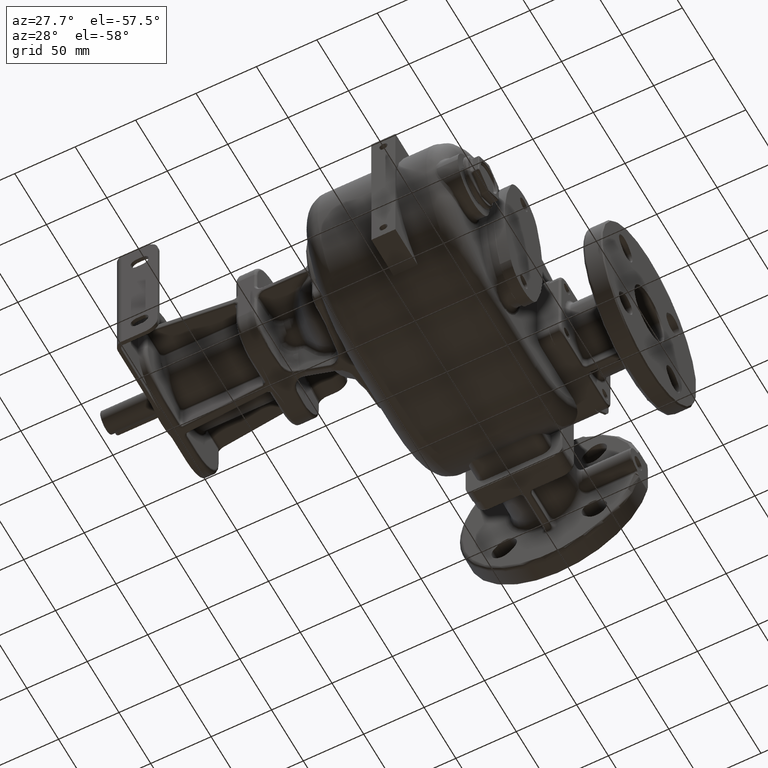
[diagram: clean part render]
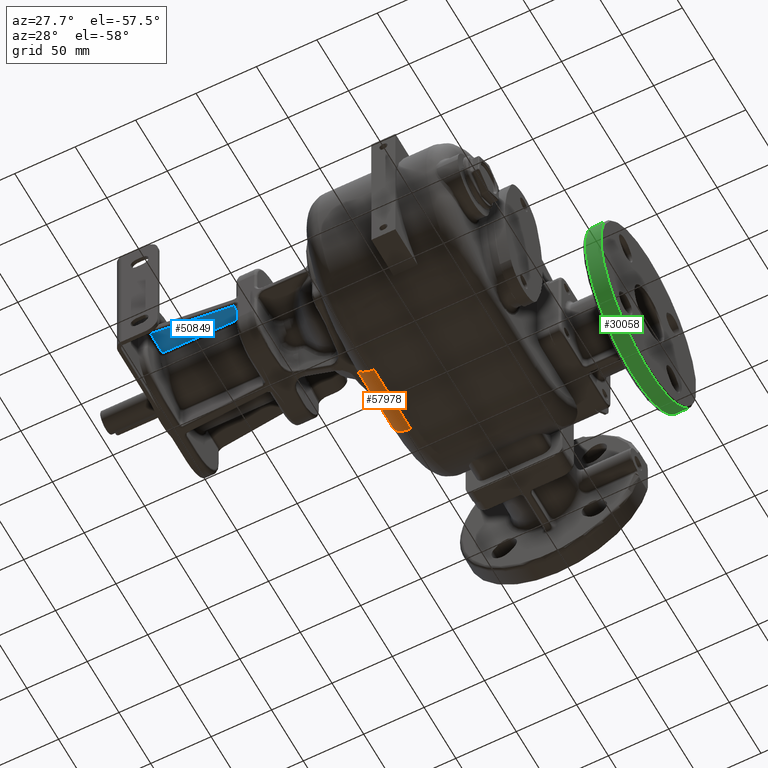
[diagram: same view with three faces highlighted in distinct colors, each labeled with its STEP entity id]
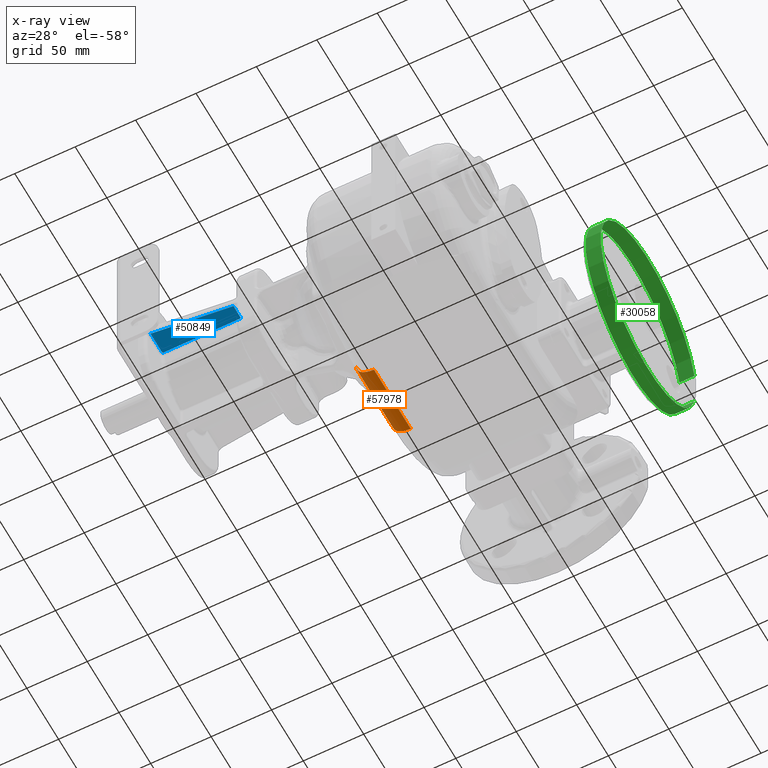
[diagram: x-ray of the same camera — body ghosted, the three highlighted faces saturated]
A machine part, auxiliary view with three faces highlighted in distinct colors.
The next image is the same camera in x-ray (body ghosted, the three faces saturated) — at least one of them is partly hidden behind the body in this view.
Their STEP definitions:

[orange] entity #57978 — the highlighted cylindrical surface (edge-blend (fillet) strip) has radius 15 mm, axis along (0, -1, 0).
#7577=CARTESIAN_POINT('',(-5.5E1,9.E1,-7.4E1));
#7578=DIRECTION('',(0.E0,-1.E0,0.E0));
#7579=DIRECTION('',(-1.E0,0.E0,0.E0));
#7580=AXIS2_PLACEMENT_3D('',#7577,#7578,#7579);
#7742=DIRECTION('',(0.E0,-1.E0,0.E0));
#7743=VECTOR('',#7742,5.800704260280E1);
#7744=CARTESIAN_POINT('',(-7.E1,1.480070426028E2,-7.4E1));
#7745=LINE('',#7744,#7743);
#21976=CARTESIAN_POINT('',(-5.5E1,1.480070426028E2,-7.4E1));
#21977=DIRECTION('',(0.E0,-1.E0,0.E0));
#21978=DIRECTION('',(-1.E0,0.E0,0.E0));
#21979=AXIS2_PLACEMENT_3D('',#21976,#21977,#21978);
#21981=DIRECTION('',(0.E0,-1.E0,0.E0));
#21982=VECTOR('',#21981,5.800704260279E1);
#21983=CARTESIAN_POINT('',(-5.5E1,1.480070426028E2,-8.9E1));
#21984=LINE('',#21983,#21982);
#23661=CARTESIAN_POINT('',(-7.E1,1.480070426028E2,-7.4E1));
#23662=VERTEX_POINT('',#23661);
#23664=CARTESIAN_POINT('',(-5.5E1,1.480070426028E2,-8.9E1));
#23666=VERTEX_POINT('',#23664);
#23667=CARTESIAN_POINT('',(-7.E1,9.E1,-7.4E1));
#23668=VERTEX_POINT('',#23667);
#23669=CARTESIAN_POINT('',(-5.5E1,9.000000000001E1,-8.9E1));
#23670=VERTEX_POINT('',#23669);
#57965=CARTESIAN_POINT('',(-5.5E1,1.484924529559E2,-7.4E1));
#57966=DIRECTION('',(0.E0,-1.E0,0.E0));
#57967=DIRECTION('',(-1.E0,0.E0,0.E0));
#57968=AXIS2_PLACEMENT_3D('',#57965,#57966,#57967);
#57969=CYLINDRICAL_SURFACE('',#57968,1.5E1);
#57970=ORIENTED_EDGE('',*,*,#35265,.T.);
#57971=ORIENTED_EDGE('',*,*,#35186,.T.);
#57973=ORIENTED_EDGE('',*,*,#57972,.F.);
#57975=ORIENTED_EDGE('',*,*,#57974,.F.);
#57976=EDGE_LOOP('',(#57970,#57971,#57973,#57975));
#57977=FACE_OUTER_BOUND('',#57976,.F.);
#57978=ADVANCED_FACE('',(#57977),#57969,.T.);
#7581=CIRCLE('',#7580,1.5E1);
#21980=CIRCLE('',#21979,1.5E1);
#35186=EDGE_CURVE('',#23668,#23670,#7581,.T.);
#35265=EDGE_CURVE('',#23662,#23668,#7745,.T.);
#57972=EDGE_CURVE('',#23666,#23670,#21984,.T.);
#57974=EDGE_CURVE('',#23662,#23666,#21980,.T.);

[blue] entity #50849 — the highlighted planar face has unit normal (0, 0, 1).
#17756=DIRECTION('',(-9.943592005519E-1,-1.060649813922E-1,
-1.477048883055E-11));
#17757=VECTOR('',#17756,6.562065321763E1);
#17758=CARTESIAN_POINT('',(-1.455704797561E2,4.150249442315E1,
-3.500000017587E0));
#17759=LINE('',#17758,#17757);
#17760=CARTESIAN_POINT('',(-1.408E2,4.3E1,-3.5E0));
#17761=DIRECTION('',(0.E0,0.E0,1.E0));
#17762=DIRECTION('',(-1.E0,0.E0,0.E0));
#17763=AXIS2_PLACEMENT_3D('',#17760,#17761,#17762);
#17765=DIRECTION('',(0.E0,-1.E0,0.E0));
#17766=VECTOR('',#17765,9.400132978959E0);
#17767=CARTESIAN_POINT('',(-1.458E2,5.240013297896E1,-3.5E0));
#17768=LINE('',#17767,#17766);
#17769=CARTESIAN_POINT('',(-1.468E2,5.341106724705E1,-3.5E0));
#17770=CARTESIAN_POINT('',(-1.467773977247E2,5.341106714674E1,-3.5E0));
#17771=CARTESIAN_POINT('',(-1.467322893593E2,5.340952240568E1,-3.5E0));
#17772=CARTESIAN_POINT('',(-1.466647303912E2,5.340255682113E1,-3.5E0));
#17773=CARTESIAN_POINT('',(-1.465978299307E2,5.339097818542E1,-3.5E0));
#17774=CARTESIAN_POINT('',(-1.465318107711E2,5.337482923168E1,-3.5E0));
#17775=CARTESIAN_POINT('',(-1.464670015705E2,5.335417941937E1,-3.5E0));
#17776=CARTESIAN_POINT('',(-1.464036858645E2,5.332911282337E1,-3.5E0));
#17777=CARTESIAN_POINT('',(-1.463421564810E2,5.329973462821E1,-3.5E0));
#17778=CARTESIAN_POINT('',(-1.462826963966E2,5.326616859214E1,-3.5E0));
#17779=CARTESIAN_POINT('',(-1.462255829437E2,5.322855793060E1,-3.5E0));
#17780=CARTESIAN_POINT('',(-1.461710849772E2,5.318706495362E1,-3.5E0));
#17781=CARTESIAN_POINT('',(-1.461194619801E2,5.314187101285E1,-3.5E0));
#17782=CARTESIAN_POINT('',(-1.460709623754E2,5.309317606671E1,-3.5E0));
#17783=CARTESIAN_POINT('',(-1.460258221336E2,5.304119826282E1,-3.5E0));
#17784=CARTESIAN_POINT('',(-1.459842632926E2,5.298617339152E1,-3.5E0));
#17785=CARTESIAN_POINT('',(-1.459464923132E2,5.292835398676E1,-3.5E0));
#17786=CARTESIAN_POINT('',(-1.459126985765E2,5.286800821879E1,-3.5E0));
#17787=CARTESIAN_POINT('',(-1.458830530509E2,5.280541921864E1,-3.5E0));
#17788=CARTESIAN_POINT('',(-1.458577065220E2,5.274088189191E1,-3.5E0));
#17789=CARTESIAN_POINT('',(-1.458367894467E2,5.267470714752E1,-3.5E0));
#17790=CARTESIAN_POINT('',(-1.458204080729E2,5.260720211819E1,-3.5E0));
#17791=CARTESIAN_POINT('',(-1.458086497488E2,5.253872136500E1,-3.5E0));
#17792=CARTESIAN_POINT('',(-1.458015711786E2,5.246952268284E1,-3.5E0));
#17793=CARTESIAN_POINT('',(-1.458000000998E2,5.242329954601E1,-3.5E0));
#17794=CARTESIAN_POINT('',(-1.458E2,5.240013297896E1,-3.5E0));
#17796=DIRECTION('',(1.E0,0.E0,0.E0));
#17797=VECTOR('',#17796,6.3E1);
#17798=CARTESIAN_POINT('',(-2.098E2,5.341106724705E1,-3.5E0));
#17799=LINE('',#17798,#17797);
#17800=CARTESIAN_POINT('',(-2.108E2,5.240013297896E1,-3.5E0));
#17801=CARTESIAN_POINT('',(-2.107999999015E2,5.242329951240E1,-3.5E0));
#17802=CARTESIAN_POINT('',(-2.107984288220E2,5.246952258605E1,-3.5E0));
#17803=CARTESIAN_POINT('',(-2.107913502934E2,5.253872105031E1,-3.5E0));
#17804=CARTESIAN_POINT('',(-2.107795919804E2,5.260720186816E1,-3.5E0));
#17805=CARTESIAN_POINT('',(-2.107632106220E2,5.267470690169E1,-3.5E0));
#17806=CARTESIAN_POINT('',(-2.107422935617E2,5.274088165704E1,-3.5E0));
#17807=CARTESIAN_POINT('',(-2.107169470443E2,5.280541899944E1,-3.5E0));
#17808=CARTESIAN_POINT('',(-2.106873015308E2,5.286800801208E1,-3.5E0));
#17809=CARTESIAN_POINT('',(-2.106535078020E2,5.292835379665E1,-3.5E0));
#17810=CARTESIAN_POINT('',(-2.106157368372E2,5.298617320927E1,-3.5E0));
#17811=CARTESIAN_POINT('',(-2.105741779761E2,5.304119812591E1,-3.5E0));
#17812=CARTESIAN_POINT('',(-2.105290378542E2,5.309317581367E1,-3.5E0));
#17813=CARTESIAN_POINT('',(-2.104805383450E2,5.314187070898E1,-3.5E0));
#17814=CARTESIAN_POINT('',(-2.104289153008E2,5.318706472826E1,-3.5E0));
#17815=CARTESIAN_POINT('',(-2.103744173608E2,5.322855771445E1,-3.5E0));
#17816=CARTESIAN_POINT('',(-2.103173039093E2,5.326616840598E1,-3.5E0));
#17817=CARTESIAN_POINT('',(-2.102578438318E2,5.329973446562E1,-3.5E0));
#17818=CARTESIAN_POINT('',(-2.101963144497E2,5.332911268656E1,-3.5E0));
#17819=CARTESIAN_POINT('',(-2.101329987473E2,5.335417930602E1,-3.5E0));
#17820=CARTESIAN_POINT('',(-2.100681895433E2,5.337482914367E1,-3.5E0));
#17821=CARTESIAN_POINT('',(-2.100021703765E2,5.339097812026E1,-3.5E0));
#17822=CARTESIAN_POINT('',(-2.099352699624E2,5.340255677369E1,-3.5E0));
#17823=CARTESIAN_POINT('',(-2.098677107552E2,5.340952240437E1,-3.5E0));
#17824=CARTESIAN_POINT('',(-2.098226023147E2,5.341106714534E1,-3.5E0));
#17825=CARTESIAN_POINT('',(-2.098E2,5.341106724705E1,-3.5E0));
#17827=DIRECTION('',(0.E0,1.E0,0.E0));
#17828=VECTOR('',#17827,1.740013297896E1);
#17829=CARTESIAN_POINT('',(-2.108E2,3.5E1,-3.5E0));
#17830=LINE('',#17829,#17828);
#17831=CARTESIAN_POINT('',(-2.158E2,3.5E1,-3.5E0));
#17832=DIRECTION('',(0.E0,0.E0,1.E0));
#17833=DIRECTION('',(9.958039931692E-1,-9.151178715474E-2,0.E0));
#17834=AXIS2_PLACEMENT_3D('',#17831,#17832,#17833);
#25677=CARTESIAN_POINT('',(-1.458E2,5.240013297896E1,-3.5E0));
#25678=CARTESIAN_POINT('',(-1.458E2,4.3E1,-3.5E0));
#25679=VERTEX_POINT('',#25677);
#25680=VERTEX_POINT('',#25678);
#25684=CARTESIAN_POINT('',(-2.098E2,5.341106724705E1,-3.5E0));
#25685=CARTESIAN_POINT('',(-1.468E2,5.341106724705E1,-3.5E0));
#25686=VERTEX_POINT('',#25684);
#25687=VERTEX_POINT('',#25685);
#25691=CARTESIAN_POINT('',(-2.108E2,3.5E1,-3.5E0));
#25692=CARTESIAN_POINT('',(-2.108E2,5.240013297896E1,-3.5E0));
#25693=VERTEX_POINT('',#25691);
#25694=VERTEX_POINT('',#25692);
#25809=CARTESIAN_POINT('',(-1.455704797561E2,4.150249442315E1,
-3.500000017587E0));
#25810=CARTESIAN_POINT('',(-2.108209800293E2,3.454244106067E1,
-3.500000018556E0));
#25811=VERTEX_POINT('',#25809);
#25812=VERTEX_POINT('',#25810);
#50829=CARTESIAN_POINT('',(-1.788E2,9.E1,-3.5E0));
#50830=DIRECTION('',(0.E0,0.E0,1.E0));
#50831=DIRECTION('',(1.E0,0.E0,0.E0));
#50832=AXIS2_PLACEMENT_3D('',#50829,#50830,#50831);
#50833=PLANE('',#50832);
#50834=ORIENTED_EDGE('',*,*,#50821,.F.);
#50835=ORIENTED_EDGE('',*,*,#41839,.F.);
#50836=ORIENTED_EDGE('',*,*,#41853,.F.);
#50838=ORIENTED_EDGE('',*,*,#50837,.F.);
#50840=ORIENTED_EDGE('',*,*,#50839,.F.);
#50842=ORIENTED_EDGE('',*,*,#50841,.F.);
#50844=ORIENTED_EDGE('',*,*,#50843,.F.);
#50846=ORIENTED_EDGE('',*,*,#50845,.F.);
#50847=EDGE_LOOP('',(#50834,#50835,#50836,#50838,#50840,#50842,#50844,#50846));
#50848=FACE_OUTER_BOUND('',#50847,.F.);
#50849=ADVANCED_FACE('',(#50848),#50833,.F.);
#17764=CIRCLE('',#17763,5.E0);
#17795=B_SPLINE_CURVE_WITH_KNOTS('',3,(#17769,#17770,#17771,#17772,#17773,
#17774,#17775,#17776,#17777,#17778,#17779,#17780,#17781,#17782,#17783,#17784,
#17785,#17786,#17787,#17788,#17789,#17790,#17791,#17792,#17793,#17794),
.UNSPECIFIED.,.F.,.F.,(4,1,1,1,1,1,1,1,1,1,1,1,1,1,1,1,1,1,1,1,1,1,1,4),(0.E0,
4.347826086957E-2,8.695652173913E-2,1.304347826087E-1,1.739130434783E-1,
2.173913043478E-1,2.608695652174E-1,3.043478260870E-1,3.478260869565E-1,
3.913043478261E-1,4.347826086957E-1,4.782608695652E-1,5.217391304348E-1,
5.652173913043E-1,6.086956521739E-1,6.521739130435E-1,6.956521739130E-1,
7.391304347826E-1,7.826086956522E-1,8.260869565217E-1,8.695652173913E-1,
9.130434782609E-1,9.565217391304E-1,1.E0),.UNSPECIFIED.);
#17826=B_SPLINE_CURVE_WITH_KNOTS('',3,(#17800,#17801,#17802,#17803,#17804,
#17805,#17806,#17807,#17808,#17809,#17810,#17811,#17812,#17813,#17814,#17815,
#17816,#17817,#17818,#17819,#17820,#17821,#17822,#17823,#17824,#17825),
.UNSPECIFIED.,.F.,.F.,(4,1,1,1,1,1,1,1,1,1,1,1,1,1,1,1,1,1,1,1,1,1,1,4),(0.E0,
4.347826086957E-2,8.695652173913E-2,1.304347826087E-1,1.739130434783E-1,
2.173913043478E-1,2.608695652174E-1,3.043478260870E-1,3.478260869565E-1,
3.913043478261E-1,4.347826086957E-1,4.782608695652E-1,5.217391304348E-1,
5.652173913043E-1,6.086956521739E-1,6.521739130435E-1,6.956521739130E-1,
7.391304347826E-1,7.826086956522E-1,8.260869565217E-1,8.695652173913E-1,
9.130434782609E-1,9.565217391304E-1,1.E0),.UNSPECIFIED.);
#17835=CIRCLE('',#17834,5.E0);
#41839=EDGE_CURVE('',#25680,#25811,#17764,.T.);
#41853=EDGE_CURVE('',#25679,#25680,#17768,.T.);
#50821=EDGE_CURVE('',#25811,#25812,#17759,.T.);
#50837=EDGE_CURVE('',#25687,#25679,#17795,.T.);
#50839=EDGE_CURVE('',#25686,#25687,#17799,.T.);
#50841=EDGE_CURVE('',#25694,#25686,#17826,.T.);
#50843=EDGE_CURVE('',#25693,#25694,#17830,.T.);
#50845=EDGE_CURVE('',#25812,#25693,#17835,.T.);

[green] entity #30058 — the highlighted cylindrical surface (partial cylindrical patch) has radius 75 mm, axis along (1, 0, 0).
#3034=CARTESIAN_POINT('',(1.21E2,1.87E2,-7.E0));
#3035=DIRECTION('',(-1.E0,0.E0,0.E0));
#3036=DIRECTION('',(0.E0,9.733333333333E-1,-2.293953404545E-1));
#3037=AXIS2_PLACEMENT_3D('',#3034,#3035,#3036);
#3556=CARTESIAN_POINT('',(1.085E2,1.87E2,-7.E0));
#3557=DIRECTION('',(-1.E0,0.E0,0.E0));
#3558=DIRECTION('',(0.E0,9.733333333333E-1,-2.293953404545E-1));
#3559=AXIS2_PLACEMENT_3D('',#3556,#3557,#3558);
#3561=DIRECTION('',(1.E0,0.E0,0.E0));
#3562=VECTOR('',#3561,1.25E1);
#3563=CARTESIAN_POINT('',(1.085E2,2.6E2,1.020465053409E1));
#3564=LINE('',#3563,#3562);
#3565=DIRECTION('',(1.E0,0.E0,0.E0));
#3566=VECTOR('',#3565,1.25E1);
#3567=CARTESIAN_POINT('',(1.085E2,2.6E2,-2.420465053409E1));
#3568=LINE('',#3567,#3566);
#24381=CARTESIAN_POINT('',(1.085E2,2.6E2,-2.420465053409E1));
#24382=CARTESIAN_POINT('',(1.21E2,2.6E2,-2.420465053409E1));
#24383=VERTEX_POINT('',#24381);
#24384=VERTEX_POINT('',#24382);
#24385=CARTESIAN_POINT('',(1.085E2,2.6E2,1.020465053409E1));
#24386=CARTESIAN_POINT('',(1.21E2,2.6E2,1.020465053409E1));
#24387=VERTEX_POINT('',#24385);
#24388=VERTEX_POINT('',#24386);
#30047=CARTESIAN_POINT('',(1.245E2,1.87E2,-7.E0));
#30048=DIRECTION('',(1.E0,0.E0,0.E0));
#30049=DIRECTION('',(0.E0,0.E0,-1.E0));
#30050=AXIS2_PLACEMENT_3D('',#30047,#30048,#30049);
#30051=CYLINDRICAL_SURFACE('',#30050,7.5E1);
#30052=ORIENTED_EDGE('',*,*,#29511,.T.);
#30053=ORIENTED_EDGE('',*,*,#29523,.T.);
#30054=ORIENTED_EDGE('',*,*,#29556,.F.);
#30055=ORIENTED_EDGE('',*,*,#29533,.F.);
#30056=EDGE_LOOP('',(#30052,#30053,#30054,#30055));
#30057=FACE_OUTER_BOUND('',#30056,.F.);
#30058=ADVANCED_FACE('',(#30057),#30051,.T.);
#3038=CIRCLE('',#3037,7.5E1);
#3560=CIRCLE('',#3559,7.5E1);
#29511=EDGE_CURVE('',#24383,#24387,#3560,.T.);
#29523=EDGE_CURVE('',#24387,#24388,#3564,.T.);
#29533=EDGE_CURVE('',#24383,#24384,#3568,.T.);
#29556=EDGE_CURVE('',#24384,#24388,#3038,.T.);